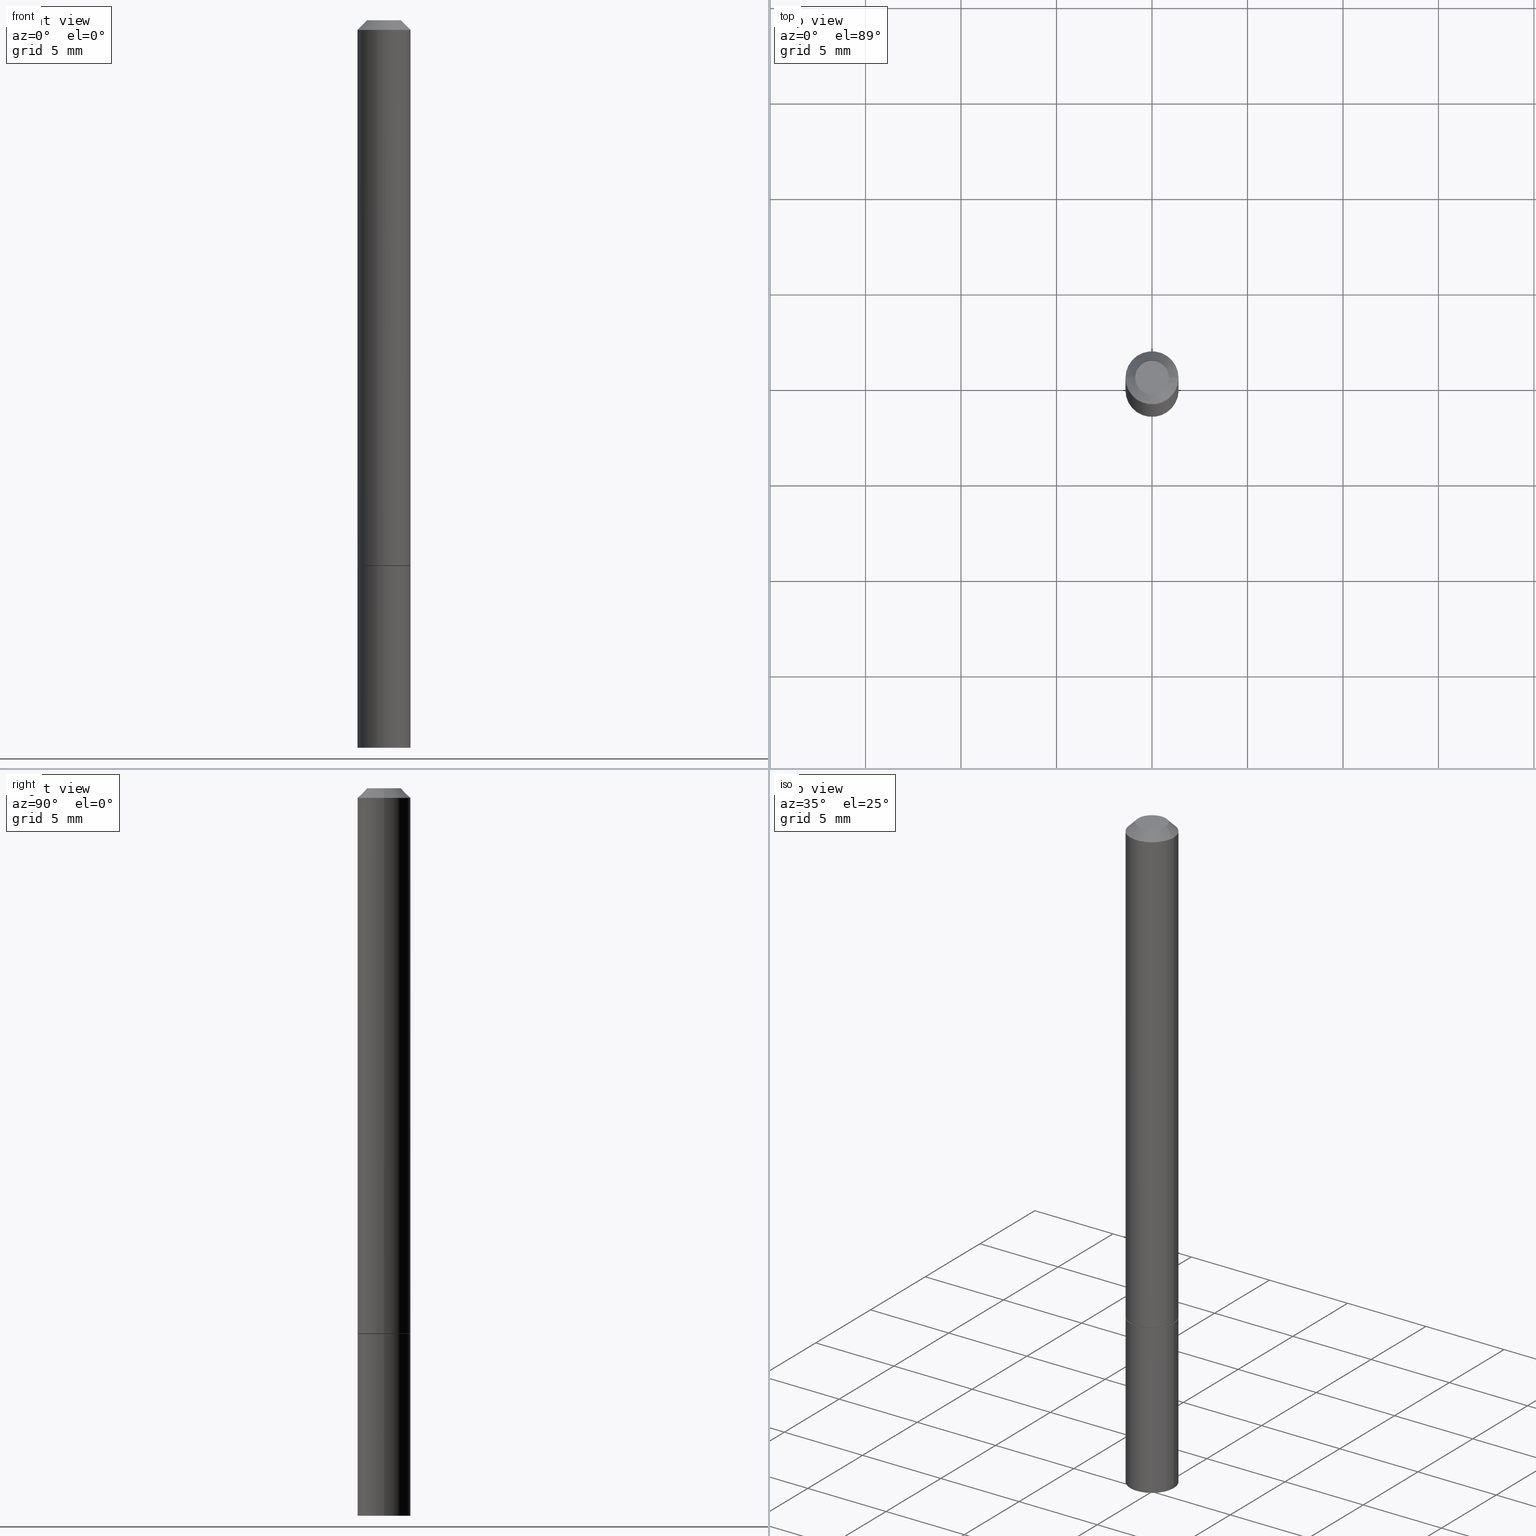
[diagram: canonical four-view strip — front | top / right | iso, engineering-drawing reading convention]
A machine part, canonical four-view strip (front | top / right | iso — engineering-drawing reading convention). The complete STEP part file that produces these views, byte-faithful:
ISO-10303-21;
HEADER;
FILE_DESCRIPTION (( 'STEP AP203' ),
    '1' );
FILE_NAME ('30197.STEP',
    '2023-03-21T20:25:54',
    ( '' ),
    ( '' ),
    'SwSTEP 2.0',
    'SolidWorks 2022',
    '' );
FILE_SCHEMA (( 'CONFIG_CONTROL_DESIGN' ));
ENDSEC;

DATA;
#1 = CYLINDRICAL_SURFACE ( 'NONE', #359, 0.05469999999999999862 ) ;
#2 = DIRECTION ( 'NONE',  ( 1.000000000000000000, -6.982962677686266711E-15, 4.876176775795935793E-29 ) ) ;
#3 = AXIS2_PLACEMENT_3D ( 'NONE', #36, #161, #278 ) ;
#4 = PERSON_AND_ORGANIZATION_ROLE ( 'creator' ) ;
#5 = VERTEX_POINT ( 'NONE', #372 ) ;
#6 = CYLINDRICAL_SURFACE ( 'NONE', #254, 0.05469999999999992923 ) ;
#7 = CIRCLE ( 'NONE', #336, 0.05469999999999985291 ) ;
#8 = LOCAL_TIME ( 16, 25, 54.00000000000000000, #125 ) ;
#9 = DIRECTION ( 'NONE',  ( -2.445468806185136877E-29, 3.491481338843145188E-15, 1.000000000000000000 ) ) ;
#10 = DIRECTION ( 'NONE',  ( -2.445468806185136597E-29, 3.491481338843145583E-15, 1.000000000000000000 ) ) ;
#11 = CONICAL_SURFACE ( 'NONE', #349, 751.2258538476739886, 1.518436449235074148 ) ;
#12 = AXIS2_PLACEMENT_3D ( 'NONE', #84, #80, #197 ) ;
#13 = EDGE_LOOP ( 'NONE', ( #257, #220, #48, #38 ) ) ;
#14 = CARTESIAN_POINT ( 'NONE',  ( 3.661205608192954727E-29, -5.227194574871356911E-15, -1.497133294473218079 ) ) ;
#15 = DIRECTION ( 'NONE',  ( -2.445468806185136597E-29, 3.491481338843145583E-15, 1.000000000000000000 ) ) ;
#16 = VERTEX_POINT ( 'NONE', #129 ) ;
#17 = EDGE_CURVE ( 'NONE', #134, #218, #249, .T. ) ;
#18 = CARTESIAN_POINT ( 'NONE',  ( -0.05469999999999999862, 3.886668764607747919E-16, -2.690657494369433708E-30 ) ) ;
#19 = APPLICATION_CONTEXT ( 'configuration controlled 3d designs of mechanical parts and assemblies' ) ;
#20 = CLOSED_SHELL ( 'NONE', ( #164, #25, #215, #260, #184, #47, #377, #298 ) ) ;
#21 = CIRCLE ( 'NONE', #281, 0.03469999999999989065 ) ;
#22 = DIRECTION ( 'NONE',  ( -2.445468806185136597E-29, 3.491481338843145583E-15, 1.000000000000000000 ) ) ;
#23 = ORIENTED_EDGE ( 'NONE', *, *, #174, .T. ) ;
#24 = DIRECTION ( 'NONE',  ( 1.000000000000000000, -6.982962677686260400E-15, 0.000000000000000000 ) ) ;
#25 = ADVANCED_FACE ( 'NONE', ( #76 ), #6, .T. ) ;
#26 =( CONVERSION_BASED_UNIT ( 'INCH', #121 ) LENGTH_UNIT ( ) NAMED_UNIT ( #224 ) );
#27 = AXIS2_PLACEMENT_3D ( 'NONE', #318, #208, #353 ) ;
#28 = DIRECTION ( 'NONE',  ( 1.000000000000000000, -6.982962677686266711E-15, 4.876176775795935793E-29 ) ) ;
#29 = DIRECTION ( 'NONE',  ( -2.445468806185136597E-29, 3.491481338843145583E-15, 1.000000000000000000 ) ) ;
#30 = CIRCLE ( 'NONE', #49, 0.05369999999999999774 ) ;
#31 = DATE_AND_TIME ( #307, #8 ) ;
#32 = ORIENTED_EDGE ( 'NONE', *, *, #44, .T. ) ;
#33 = APPLICATION_CONTEXT ( 'configuration controlled 3d designs of mechanical parts and assemblies' ) ;
#34 = DIRECTION ( 'NONE',  ( -2.445468806185136597E-29, 3.491481338843145583E-15, 1.000000000000000000 ) ) ;
#35 = COORDINATED_UNIVERSAL_TIME_OFFSET ( 5, 0, .BEHIND. ) ;
#36 = CARTESIAN_POINT ( 'NONE',  ( 2.748706938152094189E-29, -3.924425024859696217E-15, -1.124000000000000332 ) ) ;
#37 = CALENDAR_DATE ( 2023, 21, 3 ) ;
#38 = ORIENTED_EDGE ( 'NONE', *, *, #44, .F. ) ;
#39 = ORIENTED_EDGE ( 'NONE', *, *, #158, .T. ) ;
#40 = PERSON_AND_ORGANIZATION_ROLE ( 'classification_officer' ) ;
#41 = ORIENTED_EDGE ( 'NONE', *, *, #149, .F. ) ;
#42 = PERSON_AND_ORGANIZATION_ROLE ( 'creator' ) ;
#43 = DIRECTION ( 'NONE',  ( -1.000000000000000000, 6.982962677686266711E-15, 0.000000000000000000 ) ) ;
#44 = EDGE_CURVE ( 'NONE', #248, #354, #340, .T. ) ;
#45 = ADVANCED_FACE ( 'NONE', ( #227 ), #345, .F. ) ;
#46 = DIRECTION ( 'NONE',  ( 2.438088387897960049E-29, -3.491481338843145188E-15, -1.000000000000000000 ) ) ;
#47 = ADVANCED_FACE ( 'NONE', ( #140 ), #217, .T. ) ;
#48 = ORIENTED_EDGE ( 'NONE', *, *, #93, .F. ) ;
#49 = AXIS2_PLACEMENT_3D ( 'NONE', #203, #34, #381 ) ;
#50 = CIRCLE ( 'NONE', #374, 0.03469999999999989065 ) ;
#51 = MANIFOLD_SOLID_BREP ( 'Body-Move/Copy2[1]', #204 ) ;
#52 = ORIENTED_EDGE ( 'NONE', *, *, #386, .F. ) ;
#53 = LINE ( 'NONE', #135, #157 ) ;
#54 = APPROVAL_STATUS ( 'not_yet_approved' ) ;
#55 = CARTESIAN_POINT ( 'NONE',  ( 2.751152406958279232E-29, -3.927916506198539224E-15, -1.125000000000000222 ) ) ;
#56 = EDGE_CURVE ( 'NONE', #346, #286, #206, .T. ) ;
#57 = DIRECTION ( 'NONE',  ( 1.000000000000000000, -6.982962677686266711E-15, 4.876176775795935793E-29 ) ) ;
#58 = DIRECTION ( 'NONE',  ( -0.9986295347545742773, 6.790662755453668466E-15, -0.05233595624293643084 ) ) ;
#59 = AXIS2_PLACEMENT_3D ( 'NONE', #75, #82, #292 ) ;
#60 = ORIENTED_EDGE ( 'NONE', *, *, #356, .F. ) ;
#61 = CONICAL_SURFACE ( 'NONE', #133, 751.2258538476739886, 1.518436449235074148 ) ;
#62 = CARTESIAN_POINT ( 'NONE',  ( 4.890937612370276662E-31, -6.982962677686296539E-17, -0.02000000000000001776 ) ) ;
#63 =( LENGTH_UNIT ( ) NAMED_UNIT ( * ) SI_UNIT ( $, .METRE. ) );
#64 = CC_DESIGN_PERSON_AND_ORGANIZATION_ASSIGNMENT ( #247, #42, ( #138 ) ) ;
#65 =( NAMED_UNIT ( * ) SI_UNIT ( $, .STERADIAN. ) SOLID_ANGLE_UNIT ( ) );
#66 = DIRECTION ( 'NONE',  ( 0.9986295347545742773, -7.033825938271997912E-15, -0.05233595624293643084 ) ) ;
#67 = EDGE_CURVE ( 'NONE', #286, #248, #96, .T. ) ;
#68 = CONICAL_SURFACE ( 'NONE', #242, 0.05369999999999999774, 0.7853981633974824739 ) ;
#69 = PERSON_AND_ORGANIZATION ( #222, #212 ) ;
#70 = ORIENTED_EDGE ( 'NONE', *, *, #56, .T. ) ;
#71 = CC_DESIGN_DATE_AND_TIME_ASSIGNMENT ( #166, #280, ( #138 ) ) ;
#72 = PRODUCT ( '30197', '30197', '', ( #79 ) ) ;
#73 = ORIENTED_EDGE ( 'NONE', *, *, #347, .T. ) ;
#74 = DIRECTION ( 'NONE',  ( 0.000000000000000000, 0.000000000000000000, 1.000000000000000000 ) ) ;
#75 = CARTESIAN_POINT ( 'NONE',  ( 4.890937612370276662E-31, -6.982962677686296539E-17, -0.02000000000000001776 ) ) ;
#76 = FACE_OUTER_BOUND ( 'NONE', #165, .T. ) ;
#77 = ORIENTED_EDGE ( 'NONE', *, *, #347, .F. ) ;
#78 = CIRCLE ( 'NONE', #27, 0.05469999999999999862 ) ;
#79 = MECHANICAL_CONTEXT ( 'NONE', #19, 'mechanical' ) ;
#80 = DIRECTION ( 'NONE',  ( 2.438088387897960049E-29, -3.491481338843145188E-15, -1.000000000000000000 ) ) ;
#81 = CARTESIAN_POINT ( 'NONE',  ( 3.819680584694662481E-16, 0.05469999999999607121, -1.125000000000000222 ) ) ;
#82 = DIRECTION ( 'NONE',  ( 2.445468806185136597E-29, -3.491481338843145583E-15, -1.000000000000000000 ) ) ;
#83 = DIRECTION ( 'NONE',  ( 1.000000000000000000, -6.982962677686266711E-15, 0.000000000000000000 ) ) ;
#84 = CARTESIAN_POINT ( 'NONE',  ( 2.423088049157126333E-16, 0.03469999999999989065, -1.211544024578567604E-16 ) ) ;
#85 = LINE ( 'NONE', #148, #123 ) ;
#86 = AXIS2_PLACEMENT_3D ( 'NONE', #99, #74, #333 ) ;
#87 = DIRECTION ( 'NONE',  ( -2.445468806185136597E-29, 3.491481338843145583E-15, 1.000000000000000000 ) ) ;
#88 = CARTESIAN_POINT ( 'NONE',  ( 2.751152406958279232E-29, -3.927916506198539224E-15, -1.125000000000000222 ) ) ;
#89 = CARTESIAN_POINT ( 'NONE',  ( 0.05469999999999999862, -4.306393083329135397E-15, -1.124000000000000332 ) ) ;
#90 = DIRECTION ( 'NONE',  ( -2.438088387897960049E-29, 3.491481338843145188E-15, 1.000000000000000000 ) ) ;
#91 = CARTESIAN_POINT ( 'NONE',  ( 2.751152406958279232E-29, -3.927916506198539224E-15, -1.125000000000000222 ) ) ;
#92 = AXIS2_PLACEMENT_3D ( 'NONE', #293, #290, #24 ) ;
#93 = EDGE_CURVE ( 'NONE', #354, #312, #190, .T. ) ;
#94 = EDGE_CURVE ( 'NONE', #16, #218, #266, .T. ) ;
#95 = DIRECTION ( 'NONE',  ( 1.000000000000000000, -6.982962677686266711E-15, 4.876176775795935793E-29 ) ) ;
#96 = CIRCLE ( 'NONE', #92, 0.05469999999999999862 ) ;
#97 = ADVANCED_BREP_SHAPE_REPRESENTATION ( '30197', ( #51, #179, #86 ), #352 ) ;
#98 = PERSON_AND_ORGANIZATION ( #222, #212 ) ;
#99 = CARTESIAN_POINT ( 'NONE',  ( 0.000000000000000000, 0.000000000000000000, 0.000000000000000000 ) ) ;
#100 = PRODUCT_RELATED_PRODUCT_CATEGORY ( 'detail', '', ( #72 ) ) ;
#101 = LOCAL_TIME ( 16, 25, 54.00000000000000000, #252 ) ;
#102 = ORIENTED_EDGE ( 'NONE', *, *, #376, .F. ) ;
#103 = EDGE_LOOP ( 'NONE', ( #276, #116 ) ) ;
#104 = APPROVAL_STATUS ( 'not_yet_approved' ) ;
#105 = CARTESIAN_POINT ( 'NONE',  ( 0.05469999999999999862, -3.819680584694387859E-16, 2.667268696360376954E-30 ) ) ;
#106 = APPROVAL_ROLE ( '' ) ;
#107 = CARTESIAN_POINT ( 'NONE',  ( 0.03469999999999989065, -3.415790738888180623E-16, 2.041194637968371979E-30 ) ) ;
#108 = ORIENTED_EDGE ( 'NONE', *, *, #188, .T. ) ;
#109 = AXIS2_PLACEMENT_3D ( 'NONE', #325, #344, #57 ) ;
#110 = EDGE_LOOP ( 'NONE', ( #194, #39, #108, #338 ) ) ;
#111 = DIRECTION ( 'NONE',  ( -2.445468806185136597E-29, 3.491481338843145583E-15, 1.000000000000000000 ) ) ;
#112 = FACE_OUTER_BOUND ( 'NONE', #316, .T. ) ;
#113 = DIRECTION ( 'NONE',  ( -2.445468806185136597E-29, 3.491481338843145583E-15, 1.000000000000000000 ) ) ;
#114 = EDGE_LOOP ( 'NONE', ( #315, #305, #127, #41 ) ) ;
#115 = DIRECTION ( 'NONE',  ( 1.000000000000000000, -6.982962677686266711E-15, 4.876176775795935793E-29 ) ) ;
#116 = ORIENTED_EDGE ( 'NONE', *, *, #376, .T. ) ;
#117 = DIRECTION ( 'NONE',  ( 1.000000000000000000, -6.982962677686269866E-15, 0.000000000000000000 ) ) ;
#118 = DIRECTION ( 'NONE',  ( 0.7071067811865715536, -2.468850131082509496E-15, 0.7071067811865232589 ) ) ;
#119 = CARTESIAN_POINT ( 'NONE',  ( 9.993949222644319424E-28, -1.426871081894591070E-13, -40.86721203463069685 ) ) ;
#120 = VECTOR ( 'NONE', #66, 39.37007874015748143 ) ;
#121 = LENGTH_MEASURE_WITH_UNIT ( LENGTH_MEASURE( 0.02539999999999999897 ), #63 );
#122 = DIRECTION ( 'NONE',  ( -2.445468806185136877E-29, 3.491481338843145188E-15, 1.000000000000000000 ) ) ;
#123 = VECTOR ( 'NONE', #387, 39.37007874015748143 ) ;
#124 = FACE_OUTER_BOUND ( 'NONE', #150, .T. ) ;
#125 = COORDINATED_UNIVERSAL_TIME_OFFSET ( 5, 0, .BEHIND. ) ;
#126 = CC_DESIGN_PERSON_AND_ORGANIZATION_ASSIGNMENT ( #341, #40, ( #362 ) ) ;
#127 = ORIENTED_EDGE ( 'NONE', *, *, #370, .T. ) ;
#128 = ORIENTED_EDGE ( 'NONE', *, *, #285, .F. ) ;
#129 = CARTESIAN_POINT ( 'NONE',  ( -0.05369999999999999774, -3.541056602747143630E-15, -1.125000000000000222 ) ) ;
#130 = EDGE_LOOP ( 'NONE', ( #60, #73, #369, #160 ) ) ;
#131 = APPROVAL_DATE_TIME ( #168, #323 ) ;
#132 = DIRECTION ( 'NONE',  ( 1.000000000000000000, -6.982962677686266711E-15, 0.000000000000000000 ) ) ;
#133 = AXIS2_PLACEMENT_3D ( 'NONE', #167, #170, #43 ) ;
#134 = VERTEX_POINT ( 'NONE', #89 ) ;
#135 = CARTESIAN_POINT ( 'NONE',  ( 0.05469999999999985291, -4.450988672549647962E-16, -0.02000000000000001776 ) ) ;
#136 = DIRECTION ( 'NONE',  ( 1.000000000000000000, -6.982962677686268288E-15, 0.000000000000000000 ) ) ;
#137 = ADVANCED_FACE ( 'NONE', ( #176 ), #11, .F. ) ;
#138 = PRODUCT_DEFINITION ( 'UNKNOWN', '', #288, #155 ) ;
#139 = CARTESIAN_POINT ( 'NONE',  ( 0.05469999999999999862, -4.309884564667978405E-15, -1.125000000000000222 ) ) ;
#140 = FACE_OUTER_BOUND ( 'NONE', #110, .T. ) ;
#141 = SHAPE_DEFINITION_REPRESENTATION ( #332, #97 ) ;
#142 = FACE_OUTER_BOUND ( 'NONE', #13, .T. ) ;
#143 = DIRECTION ( 'NONE',  ( -0.7071067811865466846, 2.468850131082247989E-15, -0.7071067811865483499 ) ) ;
#144 = DIRECTION ( 'NONE',  ( 1.000000000000000000, -6.982962677686260400E-15, 0.000000000000000000 ) ) ;
#145 = CIRCLE ( 'NONE', #335, 0.05469999999999985291 ) ;
#146 = LINE ( 'NONE', #385, #172 ) ;
#147 = ORIENTED_EDGE ( 'NONE', *, *, #188, .F. ) ;
#148 = CARTESIAN_POINT ( 'NONE',  ( -0.05469999999999992923, 3.886668764607742989E-16, -2.690657494369430205E-30 ) ) ;
#149 = EDGE_CURVE ( 'NONE', #357, #182, #145, .T. ) ;
#150 = EDGE_LOOP ( 'NONE', ( #77, #52, #23, #269 ) ) ;
#151 = CARTESIAN_POINT ( 'NONE',  ( -0.05469999999999985291, 3.121384316925747975E-16, -0.02000000000000001776 ) ) ;
#152 = VECTOR ( 'NONE', #58, 39.37007874015748143 ) ;
#153 = CC_DESIGN_SECURITY_CLASSIFICATION ( #362, ( #288 ) ) ;
#154 = EDGE_CURVE ( 'NONE', #218, #134, #78, .T. ) ;
#155 = DESIGN_CONTEXT ( 'detailed design', #33, 'design' ) ;
#156 = VECTOR ( 'NONE', #9, 39.37007874015748143 ) ;
#157 = VECTOR ( 'NONE', #289, 39.37007874015748143 ) ;
#158 = EDGE_CURVE ( 'NONE', #16, #213, #300, .T. ) ;
#159 = PERSON_AND_ORGANIZATION_ROLE ( 'design_supplier' ) ;
#160 = ORIENTED_EDGE ( 'NONE', *, *, #174, .F. ) ;
#161 = DIRECTION ( 'NONE',  ( -2.445468806185136597E-29, 3.491481338843145583E-15, 1.000000000000000000 ) ) ;
#162 = ORIENTED_EDGE ( 'NONE', *, *, #363, .F. ) ;
#163 = PERSON_AND_ORGANIZATION_ROLE ( 'design_owner' ) ;
#164 = ADVANCED_FACE ( 'NONE', ( #261 ), #68, .T. ) ;
#165 = EDGE_LOOP ( 'NONE', ( #366, #378, #375, #309 ) ) ;
#166 = DATE_AND_TIME ( #37, #101 ) ;
#167 = CARTESIAN_POINT ( 'NONE',  ( 9.993949222644319424E-28, -1.426871081894591070E-13, -40.86721203463069685 ) ) ;
#168 = DATE_AND_TIME ( #320, #243 ) ;
#169 = ORIENTED_EDGE ( 'NONE', *, *, #67, .T. ) ;
#170 = DIRECTION ( 'NONE',  ( 2.445468806185136597E-29, -3.491481338843145583E-15, -1.000000000000000000 ) ) ;
#171 = DIRECTION ( 'NONE',  ( 1.000000000000000000, -6.982962677686268288E-15, 0.000000000000000000 ) ) ;
#172 = VECTOR ( 'NONE', #118, 39.37007874015748854 ) ;
#173 = AXIS2_PLACEMENT_3D ( 'NONE', #270, #90, #214 ) ;
#174 = EDGE_CURVE ( 'NONE', #5, #357, #326, .T. ) ;
#175 = CC_DESIGN_PERSON_AND_ORGANIZATION_ASSIGNMENT ( #69, #163, ( #72 ) ) ;
#176 = FACE_OUTER_BOUND ( 'NONE', #327, .T. ) ;
#177 = DIRECTION ( 'NONE',  ( -1.000000000000000000, 6.982962677686266711E-15, 0.000000000000000000 ) ) ;
#178 = DIRECTION ( 'NONE',  ( -2.445468806185136597E-29, 3.491481338843145583E-15, 1.000000000000000000 ) ) ;
#179 = MANIFOLD_SOLID_BREP ( 'Body-Move/Copy2[2]', #20 ) ;
#180 = CARTESIAN_POINT ( 'NONE',  ( 2.751152406958279232E-29, -3.927916506198539224E-15, -1.125000000000000222 ) ) ;
#181 = APPROVAL_PERSON_ORGANIZATION ( #313, #334, #192 ) ;
#182 = VERTEX_POINT ( 'NONE', #379 ) ;
#183 = CARTESIAN_POINT ( 'NONE',  ( 0.000000000000000000, 0.000000000000000000, 0.000000000000000000 ) ) ;
#184 = ADVANCED_FACE ( 'NONE', ( #264 ), #383, .T. ) ;
#185 = AXIS2_PLACEMENT_3D ( 'NONE', #183, #111, #115 ) ;
#186 = CARTESIAN_POINT ( 'NONE',  ( 0.05469999999999998475, -5.612491248742821943E-15, -1.500000000000000222 ) ) ;
#187 = LINE ( 'NONE', #209, #244 ) ;
#188 = EDGE_CURVE ( 'NONE', #213, #134, #146, .T. ) ;
#189 = APPLICATION_PROTOCOL_DEFINITION ( 'international standard', 'config_control_design', 1994, #19 ) ;
#190 = CIRCLE ( 'NONE', #310, 0.05469999999999999862 ) ;
#191 = EDGE_LOOP ( 'NONE', ( #233, #238 ) ) ;
#192 = APPROVAL_ROLE ( '' ) ;
#193 = ORIENTED_EDGE ( 'NONE', *, *, #56, .F. ) ;
#194 = ORIENTED_EDGE ( 'NONE', *, *, #94, .F. ) ;
#195 = AXIS2_PLACEMENT_3D ( 'NONE', #81, #46, #322 ) ;
#196 = DATE_AND_TIME ( #308, #272 ) ;
#197 = DIRECTION ( 'NONE',  ( -1.000000000000000000, 6.982962677686265922E-15, -4.876176775795935793E-29 ) ) ;
#198 = CARTESIAN_POINT ( 'NONE',  ( -0.05469999999999999862, -4.193902380770854500E-15, -1.125000000000000222 ) ) ;
#199 = CC_DESIGN_PERSON_AND_ORGANIZATION_ASSIGNMENT ( #98, #159, ( #288 ) ) ;
#200 = DIRECTION ( 'NONE',  ( 2.445468806185136597E-29, -3.491481338843145583E-15, -1.000000000000000000 ) ) ;
#201 = PERSON_AND_ORGANIZATION ( #222, #212 ) ;
#202 = EDGE_LOOP ( 'NONE', ( #283, #230, #282, #147 ) ) ;
#203 = CARTESIAN_POINT ( 'NONE',  ( 2.751152406958279232E-29, -3.927916506198539224E-15, -1.125000000000000222 ) ) ;
#204 = CLOSED_SHELL ( 'NONE', ( #291, #303, #137, #253, #45 ) ) ;
#205 = COORDINATED_UNIVERSAL_TIME_OFFSET ( 5, 0, .BEHIND. ) ;
#206 = LINE ( 'NONE', #380, #152 ) ;
#207 = CYLINDRICAL_SURFACE ( 'NONE', #109, 0.05469999999999999862 ) ;
#208 = DIRECTION ( 'NONE',  ( -2.445468806185136597E-29, 3.491481338843145583E-15, 1.000000000000000000 ) ) ;
#209 = CARTESIAN_POINT ( 'NONE',  ( 0.05469999999999992923, -3.819680584694382929E-16, 2.667268696360373451E-30 ) ) ;
#210 = DIRECTION ( 'NONE',  ( 1.000000000000000000, -6.982962677686269866E-15, 0.000000000000000000 ) ) ;
#211 = AXIS2_PLACEMENT_3D ( 'NONE', #180, #113, #136 ) ;
#212 = ORGANIZATION ( 'UNSPECIFIED', 'UNSPECIFIED', '' ) ;
#213 = VERTEX_POINT ( 'NONE', #328 ) ;
#214 = DIRECTION ( 'NONE',  ( 1.000000000000000000, -6.982962677686265922E-15, 4.876176775795935793E-29 ) ) ;
#215 = ADVANCED_FACE ( 'NONE', ( #239 ), #279, .T. ) ;
#216 = CARTESIAN_POINT ( 'NONE',  ( 1.838454268110148300E-20, -5.227212959414001236E-15, -1.497133294473218079 ) ) ;
#217 = CONICAL_SURFACE ( 'NONE', #388, 0.05369999999999999774, 0.7853981633974824739 ) ;
#218 = VERTEX_POINT ( 'NONE', #297 ) ;
#219 = EDGE_LOOP ( 'NONE', ( #255, #350 ) ) ;
#220 = ORIENTED_EDGE ( 'NONE', *, *, #285, .T. ) ;
#221 = APPROVAL_DATE_TIME ( #31, #268 ) ;
#222 = PERSON ( 'UNSPECIFIED', 'UNSPECIFIED', 'UNSPECIFIED', ('UNSPECIFIED'), ('UNSPECIFIED'), ('UNSPECIFIED') ) ;
#223 = PERSON_AND_ORGANIZATION ( #222, #212 ) ;
#224 = DIMENSIONAL_EXPONENTS ( 1.000000000000000000, 0.000000000000000000, 0.000000000000000000, 0.000000000000000000, 0.000000000000000000, 0.000000000000000000, 0.000000000000000000 ) ;
#225 = FACE_OUTER_BOUND ( 'NONE', #191, .T. ) ;
#226 = VECTOR ( 'NONE', #241, 39.37007874015748854 ) ;
#227 = FACE_OUTER_BOUND ( 'NONE', #103, .T. ) ;
#228 = EDGE_CURVE ( 'NONE', #218, #357, #85, .T. ) ;
#229 = EDGE_CURVE ( 'NONE', #213, #16, #30, .T. ) ;
#230 = ORIENTED_EDGE ( 'NONE', *, *, #94, .T. ) ;
#231 = DATE_TIME_ROLE ( 'classification_date' ) ;
#232 = CARTESIAN_POINT ( 'NONE',  ( 4.890937612370276662E-31, -6.982962677686296539E-17, -0.02000000000000001776 ) ) ;
#233 = ORIENTED_EDGE ( 'NONE', *, *, #386, .T. ) ;
#234 = CARTESIAN_POINT ( 'NONE',  ( 0.000000000000000000, 0.000000000000000000, 0.000000000000000000 ) ) ;
#235 = CARTESIAN_POINT ( 'NONE',  ( -0.05369999999999999774, -3.546355057095365243E-15, -1.125000000000000222 ) ) ;
#236 = APPROVAL_PERSON_ORGANIZATION ( #201, #323, #259 ) ;
#237 = DATE_AND_TIME ( #311, #262 ) ;
#238 = ORIENTED_EDGE ( 'NONE', *, *, #356, .T. ) ;
#239 = FACE_OUTER_BOUND ( 'NONE', #130, .T. ) ;
#240 = PLANE ( 'NONE',  #173 ) ;
#241 = DIRECTION ( 'NONE',  ( -0.7071067811865715536, 7.493145998870439357E-15, 0.7071067811865232589 ) ) ;
#242 = AXIS2_PLACEMENT_3D ( 'NONE', #88, #294, #258 ) ;
#243 = LOCAL_TIME ( 16, 25, 54.00000000000000000, #205 ) ;
#244 = VECTOR ( 'NONE', #122, 39.37007874015748143 ) ;
#245 = EDGE_CURVE ( 'NONE', #248, #286, #331, .T. ) ;
#246 = CC_DESIGN_APPROVAL ( #268, ( #288 ) ) ;
#247 = PERSON_AND_ORGANIZATION ( #222, #212 ) ;
#248 = VERTEX_POINT ( 'NONE', #186 ) ;
#249 = CIRCLE ( 'NONE', #3, 0.05469999999999999862 ) ;
#250 = CARTESIAN_POINT ( 'NONE',  ( 0.000000000000000000, 0.000000000000000000, 0.000000000000000000 ) ) ;
#251 = DIRECTION ( 'NONE',  ( 1.000000000000000000, -6.982962677686266711E-15, 4.876176775795935793E-29 ) ) ;
#252 = COORDINATED_UNIVERSAL_TIME_OFFSET ( 5, 0, .BEHIND. ) ;
#253 = ADVANCED_FACE ( 'NONE', ( #267 ), #1, .T. ) ;
#254 = AXIS2_PLACEMENT_3D ( 'NONE', #250, #367, #251 ) ;
#255 = ORIENTED_EDGE ( 'NONE', *, *, #229, .F. ) ;
#256 = CARTESIAN_POINT ( 'NONE',  ( -0.05469999999999985291, 3.121384316925747975E-16, -0.02000000000000001776 ) ) ;
#257 = ORIENTED_EDGE ( 'NONE', *, *, #245, .T. ) ;
#258 = DIRECTION ( 'NONE',  ( 1.000000000000000000, -6.982962677686268288E-15, 0.000000000000000000 ) ) ;
#259 = APPROVAL_ROLE ( '' ) ;
#260 = ADVANCED_FACE ( 'NONE', ( #124 ), #382, .T. ) ;
#261 = FACE_OUTER_BOUND ( 'NONE', #202, .T. ) ;
#262 = LOCAL_TIME ( 16, 25, 54.00000000000000000, #35 ) ;
#263 = DIRECTION ( 'NONE',  ( -2.445468806185136597E-29, 3.491481338843145583E-15, 1.000000000000000000 ) ) ;
#264 = FACE_OUTER_BOUND ( 'NONE', #114, .T. ) ;
#265 = ORIENTED_EDGE ( 'NONE', *, *, #363, .T. ) ;
#266 = LINE ( 'NONE', #235, #226 ) ;
#267 = FACE_OUTER_BOUND ( 'NONE', #342, .T. ) ;
#268 = APPROVAL ( #104, 'UNSPECIFIED' ) ;
#269 = ORIENTED_EDGE ( 'NONE', *, *, #149, .T. ) ;
#270 = CARTESIAN_POINT ( 'NONE',  ( 2.751152406958279232E-29, -3.927916506198539224E-15, -1.125000000000000222 ) ) ;
#271 = AXIS2_PLACEMENT_3D ( 'NONE', #319, #178, #144 ) ;
#272 = LOCAL_TIME ( 16, 25, 54.00000000000000000, #339 ) ;
#273 = VECTOR ( 'NONE', #287, 39.37007874015748143 ) ;
#274 = AXIS2_PLACEMENT_3D ( 'NONE', #302, #263, #117 ) ;
#275 = SECURITY_CLASSIFICATION_LEVEL ( 'unclassified' ) ;
#276 = ORIENTED_EDGE ( 'NONE', *, *, #93, .T. ) ;
#277 = CC_DESIGN_DATE_AND_TIME_ASSIGNMENT ( #237, #231, ( #362 ) ) ;
#278 = DIRECTION ( 'NONE',  ( 1.000000000000000000, -6.982962677686269866E-15, 0.000000000000000000 ) ) ;
#279 = CONICAL_SURFACE ( 'NONE', #373, 0.05469999999999985291, 0.7853981633974471688 ) ;
#280 = DATE_TIME_ROLE ( 'creation_date' ) ;
#281 = AXIS2_PLACEMENT_3D ( 'NONE', #329, #299, #28 ) ;
#282 = ORIENTED_EDGE ( 'NONE', *, *, #17, .F. ) ;
#283 = ORIENTED_EDGE ( 'NONE', *, *, #229, .T. ) ;
#284 = CARTESIAN_POINT ( 'NONE',  ( 4.890937612370276662E-31, -6.982962677686296539E-17, -0.02000000000000001776 ) ) ;
#285 = EDGE_CURVE ( 'NONE', #286, #312, #351, .T. ) ;
#286 = VERTEX_POINT ( 'NONE', #317 ) ;
#287 = DIRECTION ( 'NONE',  ( -2.445468806185136877E-29, 3.491481338843145188E-15, 1.000000000000000000 ) ) ;
#288 = PRODUCT_DEFINITION_FORMATION_WITH_SPECIFIED_SOURCE ( 'ANY', '', #72, .NOT_KNOWN. ) ;
#289 = DIRECTION ( 'NONE',  ( 0.7071067811865466846, -7.319954787623252890E-15, -0.7071067811865483499 ) ) ;
#290 = DIRECTION ( 'NONE',  ( -2.445468806185136597E-29, 3.491481338843145583E-15, 1.000000000000000000 ) ) ;
#291 = ADVANCED_FACE ( 'NONE', ( #142 ), #207, .T. ) ;
#292 = DIRECTION ( 'NONE',  ( -1.000000000000000000, 6.982962677686266711E-15, 0.000000000000000000 ) ) ;
#293 = CARTESIAN_POINT ( 'NONE',  ( 3.668203209277704895E-29, -5.237222008264718177E-15, -1.500000000000000222 ) ) ;
#294 = DIRECTION ( 'NONE',  ( -2.445468806185136597E-29, 3.491481338843145583E-15, 1.000000000000000000 ) ) ;
#295 = VECTOR ( 'NONE', #143, 39.37007874015748143 ) ;
#296 = VERTEX_POINT ( 'NONE', #107 ) ;
#297 = CARTESIAN_POINT ( 'NONE',  ( -0.05470000000000000556, -1.608460449357502599E-15, -1.124000000000000332 ) ) ;
#298 = ADVANCED_FACE ( 'NONE', ( #225 ), #314, .F. ) ;
#299 = DIRECTION ( 'NONE',  ( -2.445468806185136597E-29, 3.491481338843145583E-15, 1.000000000000000000 ) ) ;
#300 = CIRCLE ( 'NONE', #211, 0.05369999999999999774 ) ;
#301 = CIRCLE ( 'NONE', #274, 0.05469999999999999862 ) ;
#302 = CARTESIAN_POINT ( 'NONE',  ( 2.751152406958279232E-29, -3.927916506198539224E-15, -1.125000000000000222 ) ) ;
#303 = ADVANCED_FACE ( 'NONE', ( #112 ), #61, .F. ) ;
#304 = APPROVAL_STATUS ( 'not_yet_approved' ) ;
#305 = ORIENTED_EDGE ( 'NONE', *, *, #154, .T. ) ;
#306 = EDGE_CURVE ( 'NONE', #182, #357, #7, .T. ) ;
#307 = CALENDAR_DATE ( 2023, 21, 3 ) ;
#308 = CALENDAR_DATE ( 2023, 21, 3 ) ;
#309 = ORIENTED_EDGE ( 'NONE', *, *, #370, .F. ) ;
#310 = AXIS2_PLACEMENT_3D ( 'NONE', #55, #324, #210 ) ;
#311 = CALENDAR_DATE ( 2023, 21, 3 ) ;
#312 = VERTEX_POINT ( 'NONE', #198 ) ;
#313 = PERSON_AND_ORGANIZATION ( #222, #212 ) ;
#314 = PLANE ( 'NONE',  #12 ) ;
#315 = ORIENTED_EDGE ( 'NONE', *, *, #228, .F. ) ;
#316 = EDGE_LOOP ( 'NONE', ( #193, #265, #365 ) ) ;
#317 = CARTESIAN_POINT ( 'NONE',  ( -0.05469999999999998475, -4.855253949795279785E-15, -1.500000000000000222 ) ) ;
#318 = CARTESIAN_POINT ( 'NONE',  ( 2.748706938152094189E-29, -3.924425024859696217E-15, -1.124000000000000332 ) ) ;
#319 = CARTESIAN_POINT ( 'NONE',  ( 3.668203209277704895E-29, -5.237222008264718177E-15, -1.500000000000000222 ) ) ;
#320 = CALENDAR_DATE ( 2023, 21, 3 ) ;
#321 = CC_DESIGN_APPROVAL ( #323, ( #362 ) ) ;
#322 = DIRECTION ( 'NONE',  ( -1.000000000000000000, 6.982962677686265922E-15, -4.876176775795935793E-29 ) ) ;
#323 = APPROVAL ( #54, 'UNSPECIFIED' ) ;
#324 = DIRECTION ( 'NONE',  ( -2.445468806185136597E-29, 3.491481338843145583E-15, 1.000000000000000000 ) ) ;
#325 = CARTESIAN_POINT ( 'NONE',  ( 0.000000000000000000, 0.000000000000000000, 0.000000000000000000 ) ) ;
#326 = LINE ( 'NONE', #256, #295 ) ;
#327 = EDGE_LOOP ( 'NONE', ( #162, #70, #384 ) ) ;
#328 = CARTESIAN_POINT ( 'NONE',  ( 0.05369999999999999774, -4.302901601990291601E-15, -1.125000000000000222 ) ) ;
#329 = CARTESIAN_POINT ( 'NONE',  ( 0.000000000000000000, 0.000000000000000000, 0.000000000000000000 ) ) ;
#330 =( NAMED_UNIT ( * ) PLANE_ANGLE_UNIT ( ) SI_UNIT ( $, .RADIAN. ) );
#331 = CIRCLE ( 'NONE', #271, 0.05469999999999999862 ) ;
#332 = PRODUCT_DEFINITION_SHAPE ( 'NONE', 'NONE',  #138 ) ;
#333 = DIRECTION ( 'NONE',  ( 1.000000000000000000, 0.000000000000000000, 0.000000000000000000 ) ) ;
#334 = APPROVAL ( #304, 'UNSPECIFIED' ) ;
#335 = AXIS2_PLACEMENT_3D ( 'NONE', #62, #15, #83 ) ;
#336 = AXIS2_PLACEMENT_3D ( 'NONE', #284, #10, #132 ) ;
#337 = APPLICATION_PROTOCOL_DEFINITION ( 'international standard', 'config_control_design', 1994, #33 ) ;
#338 = ORIENTED_EDGE ( 'NONE', *, *, #154, .F. ) ;
#339 = COORDINATED_UNIVERSAL_TIME_OFFSET ( 5, 0, .BEHIND. ) ;
#340 = LINE ( 'NONE', #105, #156 ) ;
#341 = PERSON_AND_ORGANIZATION ( #222, #212 ) ;
#342 = EDGE_LOOP ( 'NONE', ( #128, #169, #32, #102 ) ) ;
#343 = APPROVAL_PERSON_ORGANIZATION ( #364, #268, #106 ) ;
#344 = DIRECTION ( 'NONE',  ( -2.445468806185136597E-29, 3.491481338843145583E-15, 1.000000000000000000 ) ) ;
#345 = PLANE ( 'NONE',  #195 ) ;
#346 = VERTEX_POINT ( 'NONE', #14 ) ;
#347 = EDGE_CURVE ( 'NONE', #296, #182, #53, .T. ) ;
#348 = DIRECTION ( 'NONE',  ( 2.445468806185136597E-29, -3.491481338843145583E-15, -1.000000000000000000 ) ) ;
#349 = AXIS2_PLACEMENT_3D ( 'NONE', #119, #200, #177 ) ;
#350 = ORIENTED_EDGE ( 'NONE', *, *, #158, .F. ) ;
#351 = LINE ( 'NONE', #18, #273 ) ;
#352 =( GEOMETRIC_REPRESENTATION_CONTEXT ( 3 ) GLOBAL_UNCERTAINTY_ASSIGNED_CONTEXT ( ( #371 ) ) GLOBAL_UNIT_ASSIGNED_CONTEXT ( ( #26, #330, #65 ) ) REPRESENTATION_CONTEXT ( 'NONE', 'WORKASPACE' ) );
#353 = DIRECTION ( 'NONE',  ( 1.000000000000000000, -6.982962677686269866E-15, 0.000000000000000000 ) ) ;
#354 = VERTEX_POINT ( 'NONE', #139 ) ;
#355 = DIRECTION ( 'NONE',  ( -1.000000000000000000, 6.982962677686266711E-15, 0.000000000000000000 ) ) ;
#356 = EDGE_CURVE ( 'NONE', #296, #5, #50, .T. ) ;
#357 = VERTEX_POINT ( 'NONE', #151 ) ;
#358 = FACE_OUTER_BOUND ( 'NONE', #219, .T. ) ;
#359 = AXIS2_PLACEMENT_3D ( 'NONE', #361, #29, #2 ) ;
#360 = CC_DESIGN_APPROVAL ( #334, ( #138 ) ) ;
#361 = CARTESIAN_POINT ( 'NONE',  ( 0.000000000000000000, 0.000000000000000000, 0.000000000000000000 ) ) ;
#362 = SECURITY_CLASSIFICATION ( '', '', #275 ) ;
#363 = EDGE_CURVE ( 'NONE', #346, #248, #389, .T. ) ;
#364 = PERSON_AND_ORGANIZATION ( #222, #212 ) ;
#365 = ORIENTED_EDGE ( 'NONE', *, *, #67, .F. ) ;
#366 = ORIENTED_EDGE ( 'NONE', *, *, #17, .T. ) ;
#367 = DIRECTION ( 'NONE',  ( -2.445468806185136597E-29, 3.491481338843145583E-15, 1.000000000000000000 ) ) ;
#368 = APPROVAL_DATE_TIME ( #196, #334 ) ;
#369 = ORIENTED_EDGE ( 'NONE', *, *, #306, .T. ) ;
#370 = EDGE_CURVE ( 'NONE', #134, #182, #187, .T. ) ;
#371 = UNCERTAINTY_MEASURE_WITH_UNIT (LENGTH_MEASURE( 1.000000000000000082E-05 ), #26, 'distance_accuracy_value', 'NONE');
#372 = CARTESIAN_POINT ( 'NONE',  ( -0.03469999999999989065, 2.772236183041437400E-16, -1.816498765741732758E-30 ) ) ;
#373 = AXIS2_PLACEMENT_3D ( 'NONE', #232, #348, #355 ) ;
#374 = AXIS2_PLACEMENT_3D ( 'NONE', #234, #87, #95 ) ;
#375 = ORIENTED_EDGE ( 'NONE', *, *, #306, .F. ) ;
#376 = EDGE_CURVE ( 'NONE', #312, #354, #301, .T. ) ;
#377 = ADVANCED_FACE ( 'NONE', ( #358 ), #240, .F. ) ;
#378 = ORIENTED_EDGE ( 'NONE', *, *, #228, .T. ) ;
#379 = CARTESIAN_POINT ( 'NONE',  ( 0.05469999999999985291, -4.450988672549647962E-16, -0.02000000000000001776 ) ) ;
#380 = CARTESIAN_POINT ( 'NONE',  ( -1.838454260787762350E-20, -5.227212959414001236E-15, -1.497133294473218079 ) ) ;
#381 = DIRECTION ( 'NONE',  ( 1.000000000000000000, -6.982962677686268288E-15, 0.000000000000000000 ) ) ;
#382 = CONICAL_SURFACE ( 'NONE', #59, 0.05469999999999985291, 0.7853981633974471688 ) ;
#383 = CYLINDRICAL_SURFACE ( 'NONE', #185, 0.05469999999999992923 ) ;
#384 = ORIENTED_EDGE ( 'NONE', *, *, #245, .F. ) ;
#385 = CARTESIAN_POINT ( 'NONE',  ( 0.05369999999999999774, -4.302901601990291601E-15, -1.125000000000000222 ) ) ;
#386 = EDGE_CURVE ( 'NONE', #5, #296, #21, .T. ) ;
#387 = DIRECTION ( 'NONE',  ( -2.445468806185136877E-29, 3.491481338843145188E-15, 1.000000000000000000 ) ) ;
#388 = AXIS2_PLACEMENT_3D ( 'NONE', #91, #22, #171 ) ;
#389 = LINE ( 'NONE', #216, #120 ) ;
#390 = CC_DESIGN_PERSON_AND_ORGANIZATION_ASSIGNMENT ( #223, #4, ( #288 ) ) ;
ENDSEC;
END-ISO-10303-21;
